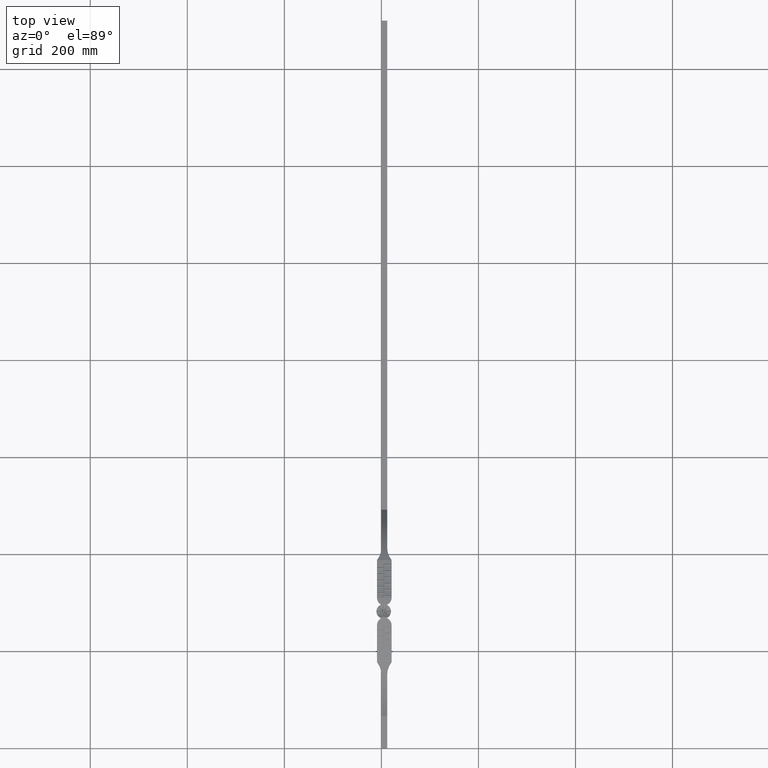
[diagram: clean part render]
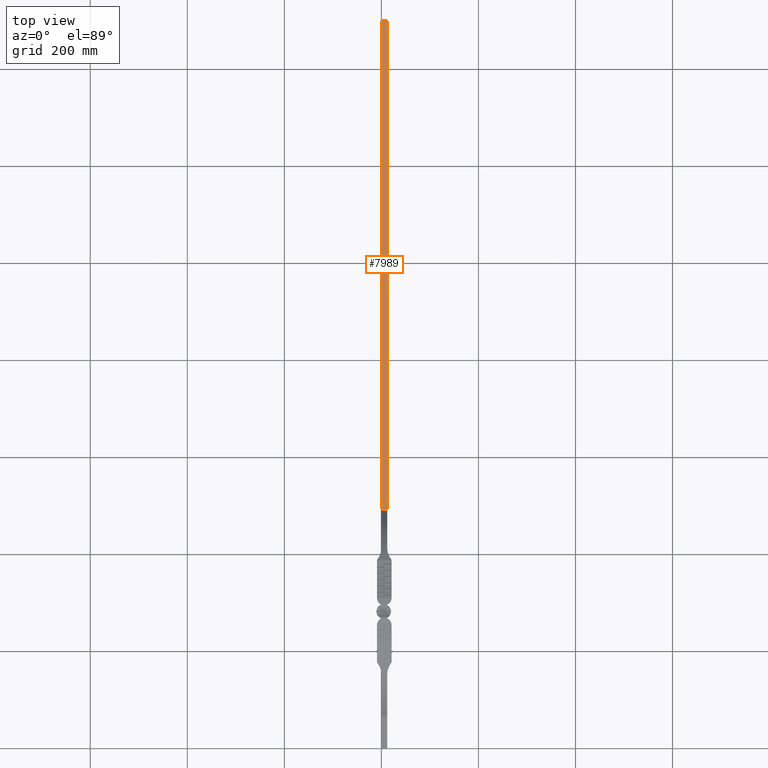
[diagram: same view with one face highlighted and labeled with its STEP entity id]
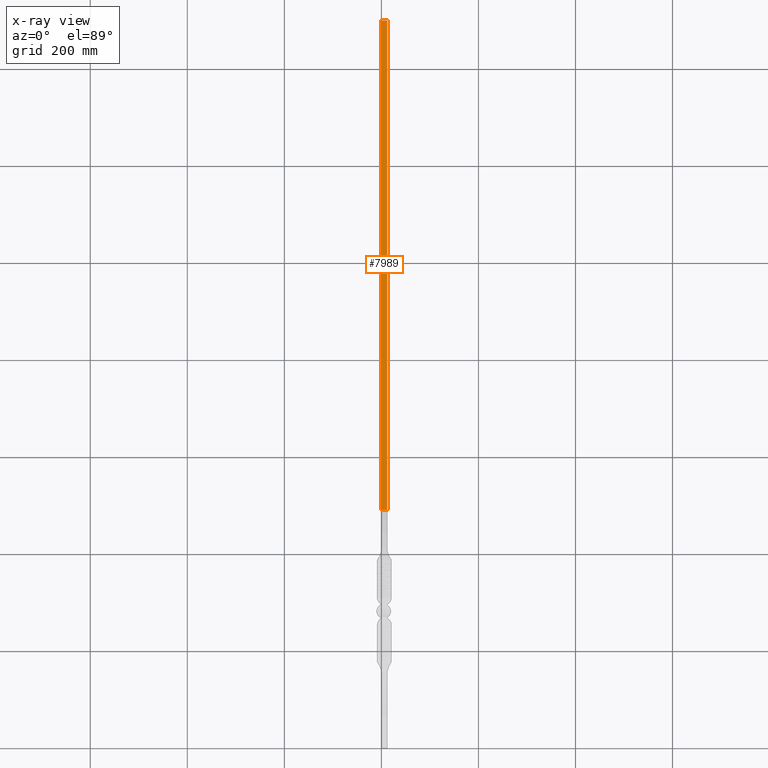
[diagram: x-ray of the same camera — body ghosted, the highlighted face saturated]
A machine part, top view. The second image highlights one B-rep face of the part: STEP entity #7989.
The next image is the same camera in x-ray: the body ghosted, the highlighted face saturated — about 0% of this face is hidden behind the body in this view.
In plain terms, the highlighted planar face has unit normal (0, 0, -1).
Its self-contained STEP definition (entity closure, byte-faithful):
#512 = EDGE_CURVE ( 'NONE', #7216, #9013, #9961, .T. ) ;
#996 = EDGE_CURVE ( 'NONE', #6373, #4778, #12456, .T. ) ;
#1906 = PLANE ( 'NONE',  #10173 ) ;
#2327 = EDGE_CURVE ( 'NONE', #9013, #4778, #13670, .T. ) ;
#2517 = DIRECTION ( 'NONE',  ( -1.000000000000000000, -0.0000000000000000000, -0.0000000000000000000 ) ) ;
#2903 = CARTESIAN_POINT ( 'NONE',  ( 12.00000000000000000, 1500.000000000000000, 12.00000000000003900 ) ) ;
#3039 = CARTESIAN_POINT ( 'NONE',  ( 12.00000000000000000, 1500.000000000000000, 12.00000000000003900 ) ) ;
#3816 = CARTESIAN_POINT ( 'NONE',  ( 0.0000000000000000000, 491.8191720686836600, 11.99999999999999600 ) ) ;
#4108 = EDGE_CURVE ( 'NONE', #7216, #6373, #5388, .T. ) ;
#4331 = DIRECTION ( 'NONE',  ( 0.0000000000000000000, 1.000000000000000000, 4.129553178358962500E-017 ) ) ;
#4778 = VERTEX_POINT ( 'NONE', #3816 ) ;
#5388 = LINE ( 'NONE', #10009, #10812 ) ;
#6170 = ORIENTED_EDGE ( 'NONE', *, *, #2327, .T. ) ;
#6176 = EDGE_LOOP ( 'NONE', ( #6170, #10393, #6664, #8405 ) ) ;
#6373 = VERTEX_POINT ( 'NONE', #11872 ) ;
#6540 = DIRECTION ( 'NONE',  ( 0.0000000000000000000, -1.000000000000000000, -4.129553178358962500E-017 ) ) ;
#6664 = ORIENTED_EDGE ( 'NONE', *, *, #4108, .F. ) ;
#6776 = CARTESIAN_POINT ( 'NONE',  ( 0.0000000000000000000, 1500.000000000000000, 12.00000000000003900 ) ) ;
#6932 = VECTOR ( 'NONE', #2517, 1000.000000000000000 ) ;
#7216 = VERTEX_POINT ( 'NONE', #3039 ) ;
#7989 = ADVANCED_FACE ( 'NONE', ( #14207 ), #1906, .F. ) ;
#8405 = ORIENTED_EDGE ( 'NONE', *, *, #512, .T. ) ;
#9013 = VERTEX_POINT ( 'NONE', #10863 ) ;
#9961 = LINE ( 'NONE', #2903, #6932 ) ;
#10009 = CARTESIAN_POINT ( 'NONE',  ( 12.00000000000000000, 1500.000000000000000, 12.00000000000003900 ) ) ;
#10173 = AXIS2_PLACEMENT_3D ( 'NONE', #10202, #11343, #4331 ) ;
#10202 = CARTESIAN_POINT ( 'NONE',  ( 12.00000000000000000, 1500.000000000000000, 12.00000000000003900 ) ) ;
#10225 = DIRECTION ( 'NONE',  ( 0.0000000000000000000, -1.000000000000000000, -4.129553178358962500E-017 ) ) ;
#10393 = ORIENTED_EDGE ( 'NONE', *, *, #996, .F. ) ;
#10639 = VECTOR ( 'NONE', #10225, 1000.000000000000000 ) ;
#10812 = VECTOR ( 'NONE', #6540, 1000.000000000000000 ) ;
#10863 = CARTESIAN_POINT ( 'NONE',  ( 0.0000000000000000000, 1500.000000000000000, 12.00000000000003900 ) ) ;
#11343 = DIRECTION ( 'NONE',  ( 0.0000000000000000000, 4.129553178358962500E-017, -1.000000000000000000 ) ) ;
#11872 = CARTESIAN_POINT ( 'NONE',  ( 12.00000000000000000, 491.8191720686836600, 11.99999999999999600 ) ) ;
#12081 = VECTOR ( 'NONE', #13390, 1000.000000000000000 ) ;
#12456 = LINE ( 'NONE', #13410, #12081 ) ;
#13390 = DIRECTION ( 'NONE',  ( -1.000000000000000000, -0.0000000000000000000, -0.0000000000000000000 ) ) ;
#13410 = CARTESIAN_POINT ( 'NONE',  ( 12.00000000000000000, 491.8191720686836600, 11.99999999999999600 ) ) ;
#13670 = LINE ( 'NONE', #6776, #10639 ) ;
#14207 = FACE_OUTER_BOUND ( 'NONE', #6176, .T. ) ;